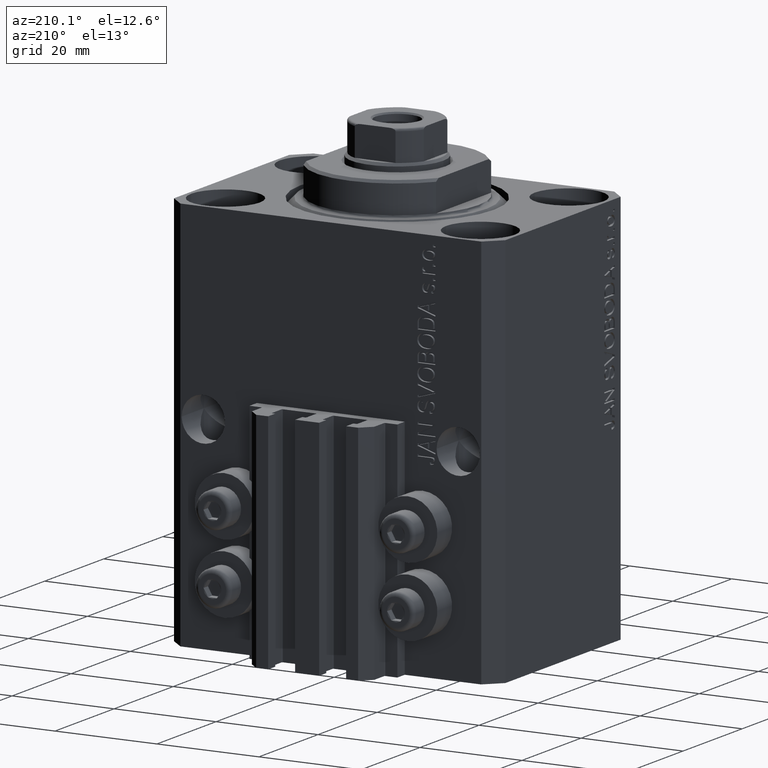
[diagram: clean part render]
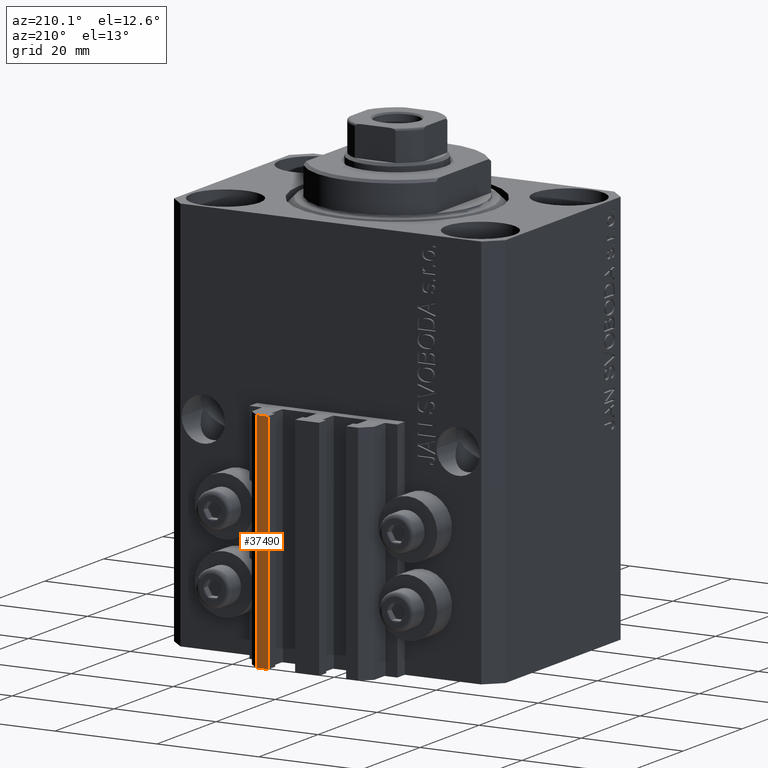
[diagram: same view with one face highlighted and labeled with its STEP entity id]
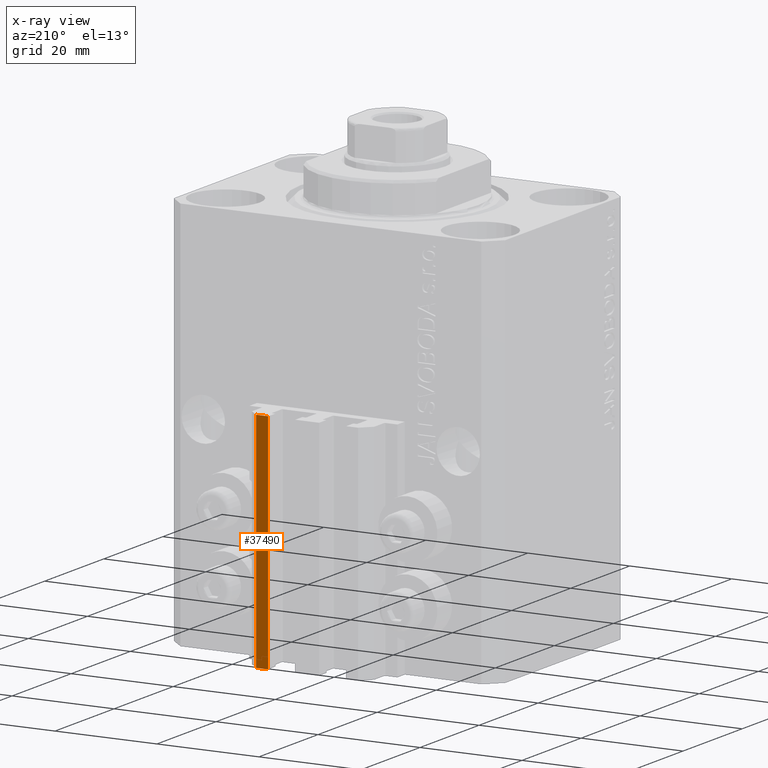
[diagram: x-ray of the same camera — body ghosted, the highlighted face saturated]
A machine part, auxiliary view. The second image highlights one B-rep face of the part: STEP entity #37490.
The next image is the same camera in x-ray: the body ghosted, the highlighted face saturated — about 0% of this face is hidden behind the body in this view.
In plain terms, the highlighted planar face has unit normal (-0, 1, 0).
Its self-contained STEP definition (entity closure, byte-faithful):
#1616 = CARTESIAN_POINT ( 'NONE',  ( 9.999999999999994671, 30.49999999999949551, -77.00000000000000000 ) ) ;
#2888 = EDGE_CURVE ( 'NONE', #39104, #43307, #25573, .T. ) ;
#4098 = DIRECTION ( 'NONE',  ( -1.000000000000000000, -1.476360405086644852E-15, 0.000000000000000000 ) ) ;
#5797 = VECTOR ( 'NONE', #42522, 1000.000000000000000 ) ;
#5907 = DIRECTION ( 'NONE',  ( -1.000000000000000000, -1.476360405086644852E-15, 0.000000000000000000 ) ) ;
#6438 = VERTEX_POINT ( 'NONE', #44086 ) ;
#9047 = CARTESIAN_POINT ( 'NONE',  ( 7.649999999999995026, 30.49999999999949196, -77.00000000000000000 ) ) ;
#9720 = DIRECTION ( 'NONE',  ( -1.476360405086644852E-15, 1.000000000000000000, 0.000000000000000000 ) ) ;
#10014 = EDGE_LOOP ( 'NONE', ( #45184, #28113, #12398, #40862 ) ) ;
#10791 = DIRECTION ( 'NONE',  ( 0.000000000000000000, 0.000000000000000000, 1.000000000000000000 ) ) ;
#11451 = CARTESIAN_POINT ( 'NONE',  ( 7.649999999999995026, 30.49999999999949196, -77.00000000000000000 ) ) ;
#11508 = VECTOR ( 'NONE', #10791, 1000.000000000000000 ) ;
#12398 = ORIENTED_EDGE ( 'NONE', *, *, #24391, .T. ) ;
#13406 = CARTESIAN_POINT ( 'NONE',  ( 9.999999999999994671, 30.49999999999949551, -77.00000000000000000 ) ) ;
#15298 = VECTOR ( 'NONE', #4098, 1000.000000000000000 ) ;
#15991 = DIRECTION ( 'NONE',  ( 0.000000000000000000, 0.000000000000000000, 1.000000000000000000 ) ) ;
#18183 = LINE ( 'NONE', #40840, #15298 ) ;
#18200 = CARTESIAN_POINT ( 'NONE',  ( 9.999999999999994671, 30.49999999999949551, -77.00000000000000000 ) ) ;
#19731 = VECTOR ( 'NONE', #15991, 1000.000000000000000 ) ;
#24391 = EDGE_CURVE ( 'NONE', #39104, #27406, #31544, .T. ) ;
#25573 = LINE ( 'NONE', #18200, #11508 ) ;
#27406 = VERTEX_POINT ( 'NONE', #11451 ) ;
#28113 = ORIENTED_EDGE ( 'NONE', *, *, #2888, .F. ) ;
#28220 = AXIS2_PLACEMENT_3D ( 'NONE', #1616, #9720, #5907 ) ;
#31432 = FACE_OUTER_BOUND ( 'NONE', #10014, .T. ) ;
#31544 = LINE ( 'NONE', #13406, #5797 ) ;
#31715 = CARTESIAN_POINT ( 'NONE',  ( 9.999999999999994671, 30.49999999999949551, -33.00000000000000000 ) ) ;
#34036 = EDGE_CURVE ( 'NONE', #27406, #6438, #37459, .T. ) ;
#34613 = CARTESIAN_POINT ( 'NONE',  ( 9.999999999999994671, 30.49999999999949551, -77.00000000000000000 ) ) ;
#37459 = LINE ( 'NONE', #9047, #19731 ) ;
#37490 = ADVANCED_FACE ( 'NONE', ( #31432 ), #38119, .T. ) ;
#38119 = PLANE ( 'NONE',  #28220 ) ;
#38181 = EDGE_CURVE ( 'NONE', #43307, #6438, #18183, .T. ) ;
#39104 = VERTEX_POINT ( 'NONE', #34613 ) ;
#40840 = CARTESIAN_POINT ( 'NONE',  ( 9.999999999999994671, 30.49999999999949551, -33.00000000000000000 ) ) ;
#40862 = ORIENTED_EDGE ( 'NONE', *, *, #34036, .T. ) ;
#42522 = DIRECTION ( 'NONE',  ( -1.000000000000000000, -1.476360405086644852E-15, 0.000000000000000000 ) ) ;
#43307 = VERTEX_POINT ( 'NONE', #31715 ) ;
#44086 = CARTESIAN_POINT ( 'NONE',  ( 7.649999999999995026, 30.49999999999949196, -33.00000000000000000 ) ) ;
#45184 = ORIENTED_EDGE ( 'NONE', *, *, #38181, .F. ) ;